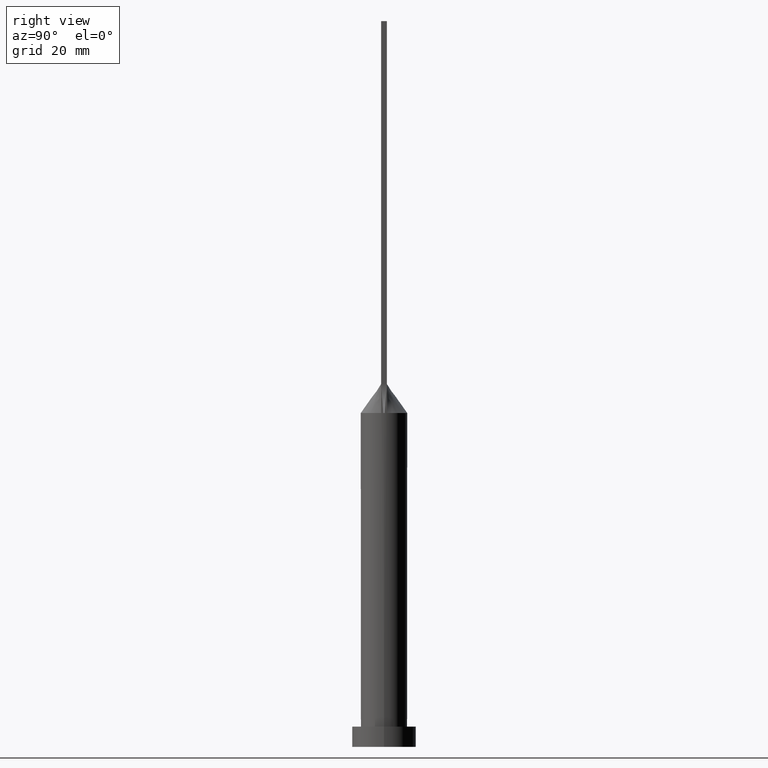
[diagram: clean part render]
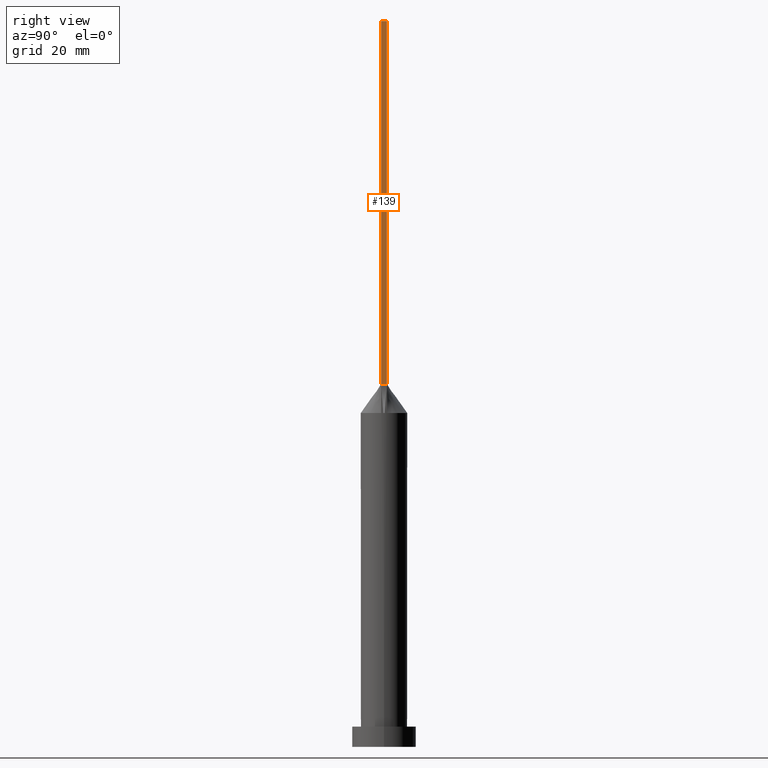
[diagram: same view with one face highlighted and labeled with its STEP entity id]
A machine part, right view. The second image highlights one B-rep face of the part: STEP entity #139.
In plain terms, the highlighted planar face has unit normal (-1, 0, 0).
Its self-contained STEP definition (entity closure, byte-faithful):
#31 = CARTESIAN_POINT ( 'NONE',  ( 7.750000000000000000, -0.9999999999999997780, 250.0000000000000000 ) ) ;
#35 = CARTESIAN_POINT ( 'NONE',  ( 7.750000000000000000, -0.9999999999999997780, 125.0000000000000000 ) ) ;
#40 = DIRECTION ( 'NONE',  ( -1.000000000000000000, 0.000000000000000000, 0.000000000000000000 ) ) ;
#44 = DIRECTION ( 'NONE',  ( 0.000000000000000000, 0.000000000000000000, 1.000000000000000000 ) ) ;
#80 = VERTEX_POINT ( 'NONE', #31 ) ;
#122 = ORIENTED_EDGE ( 'NONE', *, *, #294, .F. ) ;
#128 = ORIENTED_EDGE ( 'NONE', *, *, #552, .F. ) ;
#139 = ADVANCED_FACE ( 'NONE', ( #239 ), #587, .F. ) ;
#148 = EDGE_CURVE ( 'NONE', #415, #371, #250, .T. ) ;
#155 = VECTOR ( 'NONE', #486, 1000.000000000000000 ) ;
#194 = CARTESIAN_POINT ( 'NONE',  ( 7.750000000000000000, 1.000000000000000000, 125.0000000000000000 ) ) ;
#205 = VECTOR ( 'NONE', #286, 1000.000000000000000 ) ;
#231 = CARTESIAN_POINT ( 'NONE',  ( 7.750000000000000000, -0.9999999999999997780, 250.0000000000000000 ) ) ;
#239 = FACE_OUTER_BOUND ( 'NONE', #579, .T. ) ;
#250 = LINE ( 'NONE', #194, #393 ) ;
#260 = ORIENTED_EDGE ( 'NONE', *, *, #442, .T. ) ;
#270 = VECTOR ( 'NONE', #374, 1000.000000000000000 ) ;
#286 = DIRECTION ( 'NONE',  ( -0.000000000000000000, -0.000000000000000000, -1.000000000000000000 ) ) ;
#294 = EDGE_CURVE ( 'NONE', #427, #371, #600, .T. ) ;
#371 = VERTEX_POINT ( 'NONE', #456 ) ;
#374 = DIRECTION ( 'NONE',  ( -0.000000000000000000, -0.000000000000000000, -1.000000000000000000 ) ) ;
#390 = CARTESIAN_POINT ( 'NONE',  ( 7.750000000000000000, 1.000000000000000000, 250.0000000000000000 ) ) ;
#393 = VECTOR ( 'NONE', #451, 1000.000000000000000 ) ;
#415 = VERTEX_POINT ( 'NONE', #35 ) ;
#427 = VERTEX_POINT ( 'NONE', #390 ) ;
#439 = CARTESIAN_POINT ( 'NONE',  ( 7.750000000000000000, -0.9999999999999997780, 250.0000000000000000 ) ) ;
#442 = EDGE_CURVE ( 'NONE', #80, #415, #535, .T. ) ;
#451 = DIRECTION ( 'NONE',  ( -0.000000000000000000, 1.000000000000000000, -0.000000000000000000 ) ) ;
#452 = ORIENTED_EDGE ( 'NONE', *, *, #148, .T. ) ;
#455 = AXIS2_PLACEMENT_3D ( 'NONE', #439, #40, #44 ) ;
#456 = CARTESIAN_POINT ( 'NONE',  ( 7.750000000000000000, 1.000000000000000000, 125.0000000000000000 ) ) ;
#486 = DIRECTION ( 'NONE',  ( 0.000000000000000000, 1.000000000000000000, 0.000000000000000000 ) ) ;
#535 = LINE ( 'NONE', #231, #205 ) ;
#552 = EDGE_CURVE ( 'NONE', #80, #427, #573, .T. ) ;
#573 = LINE ( 'NONE', #575, #155 ) ;
#575 = CARTESIAN_POINT ( 'NONE',  ( 7.750000000000000000, -0.9999999999999997780, 250.0000000000000000 ) ) ;
#579 = EDGE_LOOP ( 'NONE', ( #452, #122, #128, #260 ) ) ;
#587 = PLANE ( 'NONE',  #455 ) ;
#600 = LINE ( 'NONE', #606, #270 ) ;
#606 = CARTESIAN_POINT ( 'NONE',  ( 7.750000000000000000, 1.000000000000000000, 250.0000000000000000 ) ) ;